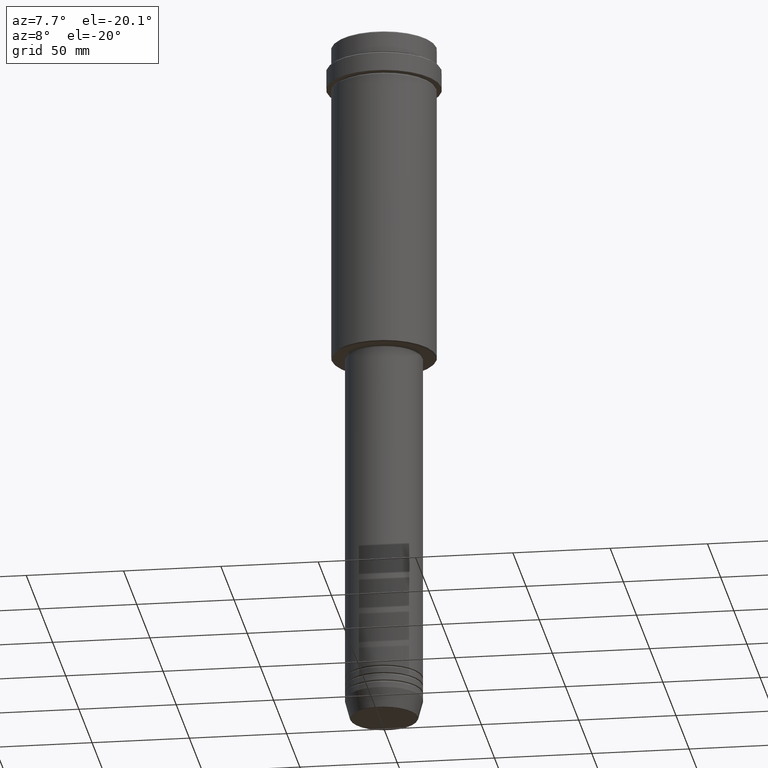
[diagram: clean part render]
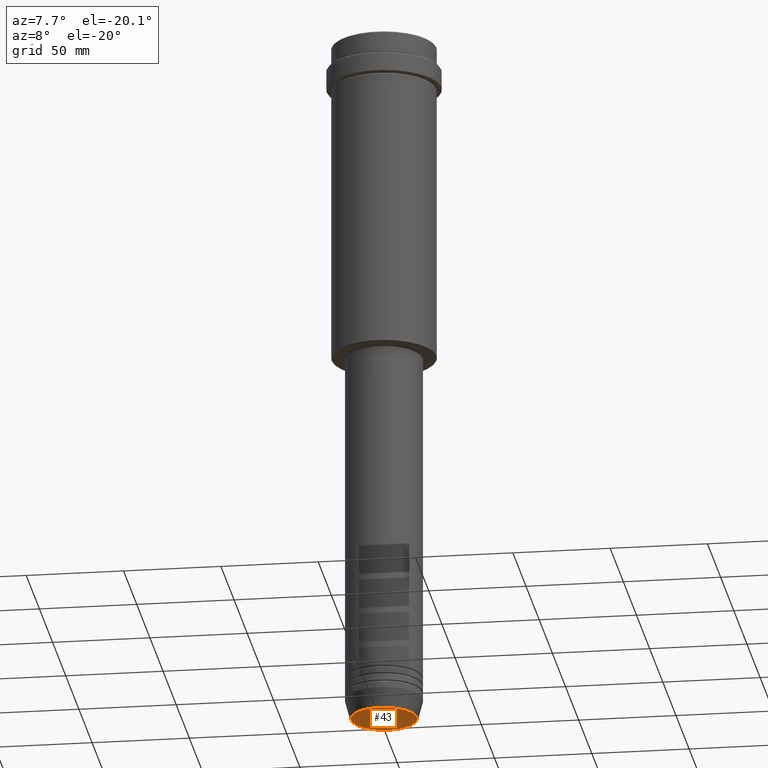
[diagram: same view with one face highlighted and labeled with its STEP entity id]
A machine part, auxiliary view. The second image highlights one B-rep face of the part: STEP entity #43.
In plain terms, the highlighted planar face has unit normal (0, -0, 1).
Its self-contained STEP definition (entity closure, byte-faithful):
#12 = ORIENTED_EDGE ( 'NONE', *, *, #805, .T. ) ;
#43 = ADVANCED_FACE ( 'NONE', ( #1214 ), #441, .F. ) ;
#63 = DIRECTION ( 'NONE',  ( 0.000000000000000000, 0.000000000000000000, -1.000000000000000000 ) ) ;
#79 = VERTEX_POINT ( 'NONE', #721 ) ;
#149 = CARTESIAN_POINT ( 'NONE',  ( -16.93684458169928675, 2.103738199747889592E-15, -363.0000000000000568 ) ) ;
#189 = AXIS2_PLACEMENT_3D ( 'NONE', #909, #245, #609 ) ;
#245 = DIRECTION ( 'NONE',  ( 0.000000000000000000, 0.000000000000000000, -1.000000000000000000 ) ) ;
#441 = PLANE ( 'NONE',  #504 ) ;
#458 = AXIS2_PLACEMENT_3D ( 'NONE', #855, #63, #528 ) ;
#504 = AXIS2_PLACEMENT_3D ( 'NONE', #972, #670, #1397 ) ;
#528 = DIRECTION ( 'NONE',  ( 1.000000000000000000, 0.000000000000000000, 0.000000000000000000 ) ) ;
#579 = VERTEX_POINT ( 'NONE', #149 ) ;
#589 = EDGE_CURVE ( 'NONE', #579, #79, #1027, .T. ) ;
#609 = DIRECTION ( 'NONE',  ( 1.000000000000000000, 0.000000000000000000, 0.000000000000000000 ) ) ;
#662 = CIRCLE ( 'NONE', #189, 16.93684458169928675 ) ;
#666 = ORIENTED_EDGE ( 'NONE', *, *, #589, .T. ) ;
#670 = DIRECTION ( 'NONE',  ( 0.000000000000000000, -0.000000000000000000, 1.000000000000000000 ) ) ;
#721 = CARTESIAN_POINT ( 'NONE',  ( 16.93684458169928675, 0.000000000000000000, -363.0000000000000568 ) ) ;
#805 = EDGE_CURVE ( 'NONE', #79, #579, #662, .T. ) ;
#855 = CARTESIAN_POINT ( 'NONE',  ( 0.000000000000000000, 0.000000000000000000, -363.0000000000000568 ) ) ;
#909 = CARTESIAN_POINT ( 'NONE',  ( 0.000000000000000000, 0.000000000000000000, -363.0000000000000568 ) ) ;
#972 = CARTESIAN_POINT ( 'NONE',  ( 0.000000000000000000, 0.000000000000000000, -363.0000000000000568 ) ) ;
#1027 = CIRCLE ( 'NONE', #458, 16.93684458169928675 ) ;
#1116 = EDGE_LOOP ( 'NONE', ( #12, #666 ) ) ;
#1214 = FACE_OUTER_BOUND ( 'NONE', #1116, .T. ) ;
#1397 = DIRECTION ( 'NONE',  ( 1.000000000000000000, 0.000000000000000000, 0.000000000000000000 ) ) ;